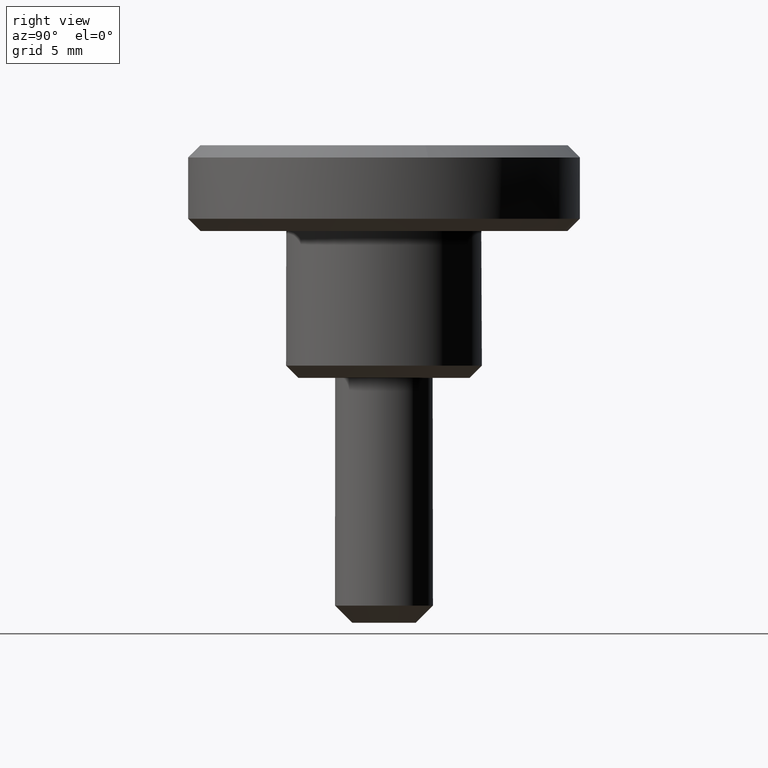
[diagram: clean part render]
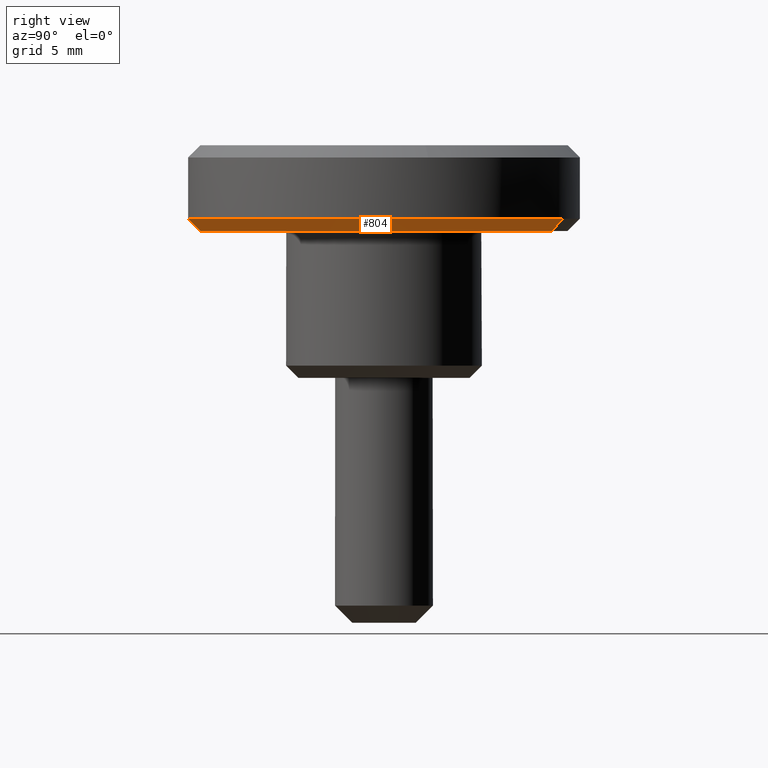
[diagram: same view with one face highlighted and labeled with its STEP entity id]
A machine part, right view. The second image highlights one B-rep face of the part: STEP entity #804.
In plain terms, the highlighted face is a freeform B-spline surface patch.
Its self-contained STEP definition (entity closure, byte-faithful):
#626=CARTESIAN_POINT('',(3.233723455905443,7.317310476584305,6.500000000000218));
#627=VERTEX_POINT('',#626);
#645=CARTESIAN_POINT('',(3.031615739919216,6.859978571795065,6.000000000000922));
#646=VERTEX_POINT('',#645);
#647=CARTESIAN_POINT('',(3.031615739919216,6.859978571795065,6.000000000000922));
#648=CARTESIAN_POINT('',(3.233723455905443,7.317310476584305,6.500000000000218));
#649=QUASI_UNIFORM_CURVE('',1,(#647,#648),.UNSPECIFIED.,.F.,.U.);
#650=EDGE_CURVE('',#646,#627,#649,.T.);
#669=CARTESIAN_POINT('',(0.065449016255902,-7.499714422983574,6.000000000002476));
#670=VERTEX_POINT('',#669);
#686=CARTESIAN_POINT('',(0.069809143826576,-7.999695411913436,6.499999999998768));
#687=VERTEX_POINT('',#686);
#688=CARTESIAN_POINT('',(0.065449016255902,-7.499714422983574,6.000000000002476));
#689=CARTESIAN_POINT('',(0.069809143826576,-7.999695411913436,6.499999999998768));
#690=QUASI_UNIFORM_CURVE('',1,(#688,#689),.UNSPECIFIED.,.F.,.U.);
#691=EDGE_CURVE('',#670,#687,#690,.T.);
#726=CARTESIAN_POINT('',(0.065339934544074,-7.487214898942923,5.987499999999999));
#727=CARTESIAN_POINT('',(7.552554833486997,-7.421874964398849,5.987500000000000));
#728=CARTESIAN_POINT('',(7.487214898942923,0.065339934544074,5.987499999999999));
#729=CARTESIAN_POINT('',(7.445059339336359,4.895888605305786,5.987499999999998));
#730=CARTESIAN_POINT('',(3.026563047009186,6.848545274178859,5.987499999999998));
#731=CARTESIAN_POINT('',(0.069924092723064,-8.012507396652628,6.512812500000001));
#732=CARTESIAN_POINT('',(8.082431489375692,-7.942583303929566,6.512812500000001));
#733=CARTESIAN_POINT('',(8.012507396652628,0.069924092723064,6.512812500000001));
#734=CARTESIAN_POINT('',(7.967394262100380,5.239377284167221,6.512812500000001));
#735=CARTESIAN_POINT('',(3.238902466125340,7.329029606645305,6.512812500000002));
#743=(BOUNDED_SURFACE()B_SPLINE_SURFACE(2,1,((#726,#731),(#727,#732),(#728,#733),(#729,#734),(#730,#735)),.UNSPECIFIED.,.F.,.F.,.U.)B_SPLINE_SURFACE_WITH_KNOTS((3,2,3),(2,2),(0.0,13.276062441010660,22.834827398538330),(0.0,1.0),.UNSPECIFIED.)GEOMETRIC_REPRESENTATION_ITEM()RATIONAL_B_SPLINE_SURFACE(((1.0,1.0),(0.707106781186548,0.707106781186548),(1.0,1.0),(0.789116882454314,0.789116882454314),(0.881905454174416,0.881905454174416)))REPRESENTATION_ITEM('')SURFACE());
#744=CARTESIAN_POINT('',(8.0,0.0,6.500000000000000));
#745=VERTEX_POINT('',#744);
#746=CARTESIAN_POINT('',(8.0,0.0,6.500000000000000));
#747=CARTESIAN_POINT('',(8.0,5.210960020729336,6.500000000000000));
#748=CARTESIAN_POINT('',(3.233723455905442,7.317310476584305,6.500000000000218));
#756=(BOUNDED_CURVE()B_SPLINE_CURVE(2,(#746,#747,#748),.UNSPECIFIED.,.F.,.U.)B_SPLINE_CURVE_WITH_KNOTS((3,3),(0.0,0.181361578459833),.UNSPECIFIED.)CURVE()GEOMETRIC_REPRESENTATION_ITEM()RATIONAL_B_SPLINE_CURVE((1.0,0.787521694063244,0.883326595751779))REPRESENTATION_ITEM(''));
#757=EDGE_CURVE('',#745,#627,#756,.T.);
#758=ORIENTED_EDGE('',*,*,#757,.F.);
#759=CARTESIAN_POINT('',(0.069809143826576,-7.999695411913436,6.499999999998768));
#760=CARTESIAN_POINT('',(8.0,-7.930492797873697,6.500000000000000));
#761=CARTESIAN_POINT('',(8.0,0.0,6.500000000000000));
#769=(BOUNDED_CURVE()B_SPLINE_CURVE(2,(#759,#760,#761),.UNSPECIFIED.,.F.,.U.)B_SPLINE_CURVE_WITH_KNOTS((3,3),(0.751539825192777,1.0),.UNSPECIFIED.)CURVE()GEOMETRIC_REPRESENTATION_ITEM()RATIONAL_B_SPLINE_CURVE((0.996414188114897,0.708910798615037,1.0))REPRESENTATION_ITEM(''));
#770=EDGE_CURVE('',#687,#745,#769,.T.);
#771=ORIENTED_EDGE('',*,*,#770,.F.);
#772=ORIENTED_EDGE('',*,*,#691,.F.);
#773=CARTESIAN_POINT('',(7.500000000000000,0.0,6.0));
#774=VERTEX_POINT('',#773);
#775=CARTESIAN_POINT('',(7.500000000000000,0.0,6.0));
#776=CARTESIAN_POINT('',(7.499999999999999,-7.434834079426476,5.999999999999999));
#777=CARTESIAN_POINT('',(0.065449016255902,-7.499714422983575,6.000000000002476));
#785=(BOUNDED_CURVE()B_SPLINE_CURVE(2,(#775,#776,#777),.UNSPECIFIED.,.F.,.U.)B_SPLINE_CURVE_WITH_KNOTS((3,3),(0.500000000000000,0.748460105664163),.UNSPECIFIED.)CURVE()GEOMETRIC_REPRESENTATION_ITEM()RATIONAL_B_SPLINE_CURVE((1.0,0.708910879621171,0.996414028098440))REPRESENTATION_ITEM(''));
#786=EDGE_CURVE('',#774,#670,#785,.T.);
#787=ORIENTED_EDGE('',*,*,#786,.F.);
#788=CARTESIAN_POINT('',(3.031615739919216,6.859978571795065,6.000000000000922));
#789=CARTESIAN_POINT('',(7.500000000000000,4.885275019421942,5.999999999999999));
#790=CARTESIAN_POINT('',(7.500000000000000,0.0,6.0));
#798=(BOUNDED_CURVE()B_SPLINE_CURVE(2,(#788,#789,#790),.UNSPECIFIED.,.F.,.U.)B_SPLINE_CURVE_WITH_KNOTS((3,3),(0.318638421540512,0.500000000000000),.UNSPECIFIED.)CURVE()GEOMETRIC_REPRESENTATION_ITEM()RATIONAL_B_SPLINE_CURVE((0.883326595751414,0.787521694063649,1.0))REPRESENTATION_ITEM(''));
#799=EDGE_CURVE('',#646,#774,#798,.T.);
#800=ORIENTED_EDGE('',*,*,#799,.F.);
#801=ORIENTED_EDGE('',*,*,#650,.T.);
#802=EDGE_LOOP('',(#758,#771,#772,#787,#800,#801));
#803=FACE_OUTER_BOUND('',#802,.T.);
#804=ADVANCED_FACE('',(#803),#743,.T.);